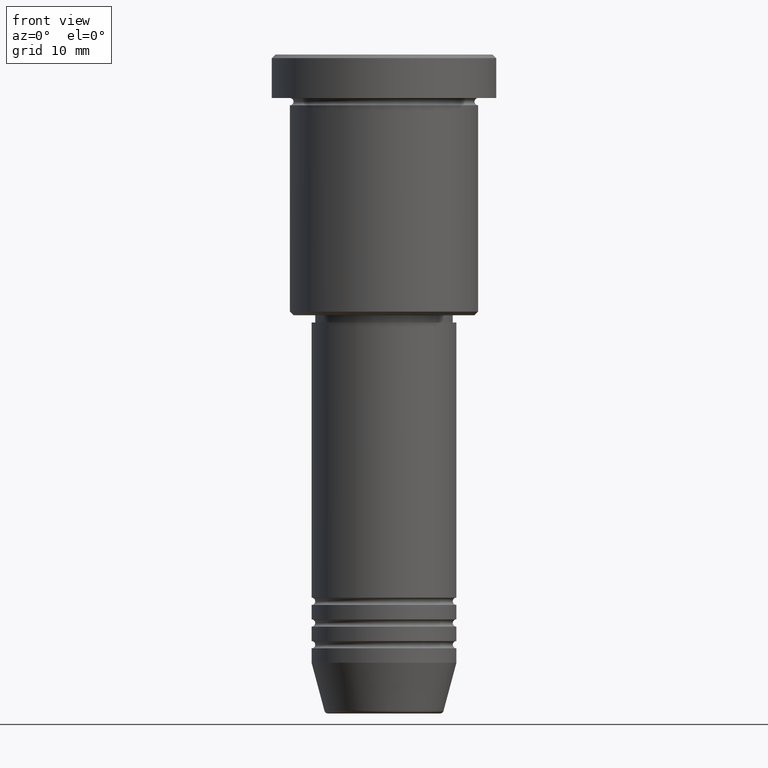
[diagram: clean part render]
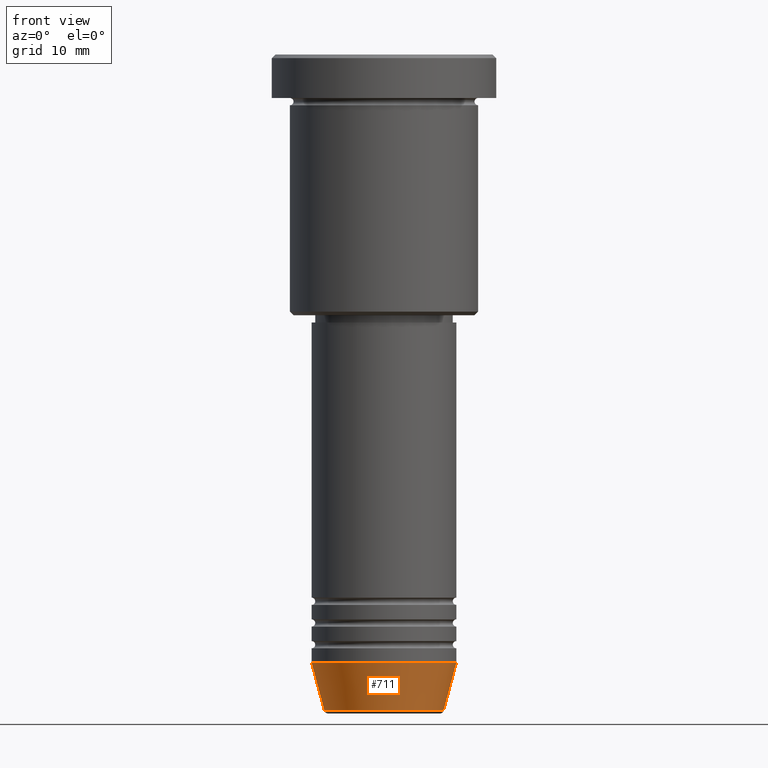
[diagram: same view with one face highlighted and labeled with its STEP entity id]
A machine part, front view. The second image highlights one B-rep face of the part: STEP entity #711.
In plain terms, the highlighted conical surface has half-angle 15 deg.
Its self-contained STEP definition (entity closure, byte-faithful):
#14 = CARTESIAN_POINT ( 'NONE',  ( 10.00000000000000000, 0.000000000000000000, -83.99999999999998579 ) ) ;
#19 = DIRECTION ( 'NONE',  ( 0.2588190451025213501, 0.000000000000000000, 0.9659258262890680902 ) ) ;
#42 = VERTEX_POINT ( 'NONE', #166 ) ;
#103 = CONICAL_SURFACE ( 'NONE', #579, 10.00000000000000000, 0.2617993877991500740 ) ;
#121 = DIRECTION ( 'NONE',  ( -0.000000000000000000, -0.000000000000000000, 1.000000000000000000 ) ) ;
#137 = DIRECTION ( 'NONE',  ( -0.2588190451025213501, 3.169619151431772337E-17, 0.9659258262890680902 ) ) ;
#166 = CARTESIAN_POINT ( 'NONE',  ( 8.223655072137187716, 0.000000000000000000, -90.62940952255125637 ) ) ;
#167 = CIRCLE ( 'NONE', #784, 8.223655072137187716 ) ;
#176 = EDGE_CURVE ( 'NONE', #1133, #42, #167, .T. ) ;
#297 = DIRECTION ( 'NONE',  ( 1.000000000000000000, 0.000000000000000000, 0.000000000000000000 ) ) ;
#350 = CARTESIAN_POINT ( 'NONE',  ( -10.00000000000000000, 1.224646799147353256E-15, -83.99999999999998579 ) ) ;
#380 = VECTOR ( 'NONE', #137, 1000.000000000000000 ) ;
#459 = DIRECTION ( 'NONE',  ( 1.000000000000000000, 0.000000000000000000, 0.000000000000000000 ) ) ;
#483 = ORIENTED_EDGE ( 'NONE', *, *, #783, .T. ) ;
#494 = DIRECTION ( 'NONE',  ( -0.000000000000000000, -0.000000000000000000, 1.000000000000000000 ) ) ;
#497 = EDGE_CURVE ( 'NONE', #1133, #635, #1165, .T. ) ;
#514 = ORIENTED_EDGE ( 'NONE', *, *, #176, .T. ) ;
#557 = CARTESIAN_POINT ( 'NONE',  ( 0.000000000000000000, 0.000000000000000000, -83.99999999999998579 ) ) ;
#579 = AXIS2_PLACEMENT_3D ( 'NONE', #605, #121, #773 ) ;
#605 = CARTESIAN_POINT ( 'NONE',  ( 0.000000000000000000, 0.000000000000000000, -83.99999999999998579 ) ) ;
#610 = EDGE_CURVE ( 'NONE', #635, #697, #1120, .T. ) ;
#612 = ORIENTED_EDGE ( 'NONE', *, *, #610, .F. ) ;
#635 = VERTEX_POINT ( 'NONE', #1181 ) ;
#697 = VERTEX_POINT ( 'NONE', #900 ) ;
#711 = ADVANCED_FACE ( 'NONE', ( #1060 ), #103, .T. ) ;
#712 = ORIENTED_EDGE ( 'NONE', *, *, #497, .F. ) ;
#773 = DIRECTION ( 'NONE',  ( 1.000000000000000000, 0.000000000000000000, 0.000000000000000000 ) ) ;
#783 = EDGE_CURVE ( 'NONE', #42, #697, #860, .T. ) ;
#784 = AXIS2_PLACEMENT_3D ( 'NONE', #1029, #494, #297 ) ;
#824 = CARTESIAN_POINT ( 'NONE',  ( -8.223655072137187716, 1.115877042642911856E-15, -90.62940952255125637 ) ) ;
#860 = LINE ( 'NONE', #14, #929 ) ;
#879 = EDGE_LOOP ( 'NONE', ( #712, #514, #483, #612 ) ) ;
#900 = CARTESIAN_POINT ( 'NONE',  ( 10.00000000000000000, 0.000000000000000000, -83.99999999999998579 ) ) ;
#929 = VECTOR ( 'NONE', #19, 1000.000000000000000 ) ;
#996 = AXIS2_PLACEMENT_3D ( 'NONE', #557, #1007, #459 ) ;
#1007 = DIRECTION ( 'NONE',  ( -0.000000000000000000, -0.000000000000000000, 1.000000000000000000 ) ) ;
#1029 = CARTESIAN_POINT ( 'NONE',  ( 0.000000000000000000, 0.000000000000000000, -90.62940952255125637 ) ) ;
#1060 = FACE_OUTER_BOUND ( 'NONE', #879, .T. ) ;
#1120 = CIRCLE ( 'NONE', #996, 10.00000000000000000 ) ;
#1133 = VERTEX_POINT ( 'NONE', #824 ) ;
#1165 = LINE ( 'NONE', #350, #380 ) ;
#1181 = CARTESIAN_POINT ( 'NONE',  ( -10.00000000000000000, 1.224646799147353256E-15, -83.99999999999998579 ) ) ;